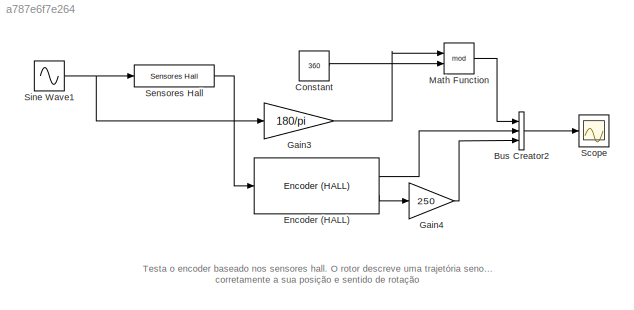
MODEL slx_a787e6f7e264
KIND model
BLOCK [BusCreator] Bus Creator2
  DisplayOption = bar
  Inputs = 3
  Ports = [3, 1]
BLOCK [Constant] Constant
  Value = 360
BLOCK [Reference] Encoder (HALL)  REF=Encoder/Encoder (HALL)
  Ports = [1, 2]
  SourceBlock = Encoder/Encoder (HALL)
  SourceType = Stateflow
BLOCK [Gain] Gain3
  Gain = 180/pi
  OutDataTypeStr = Inherit: Inherit via internal rule
  ParamDataTypeStr = Inherit: Inherit via internal rule
  SaturateOnIntegerOverflow = off
BLOCK [Gain] Gain4
  Gain = 250
  OutDataTypeStr = Inherit: Inherit via internal rule
  ParamDataTypeStr = Inherit: Inherit via internal rule
  SaturateOnIntegerOverflow = off
BLOCK [Math] Math Function
  Operator = mod
  Ports = [2, 1]
BLOCK [Scope] Scope
  DataFormat = StructureWithTime
  Floating = off
  LimitDataPoints = off
  NumInputPorts = 1
  Ports = [1]
  SampleTime = 0
  SaveName = ScopeData7
  ShowLegends = off
  ZoomMode = yonly
BLOCK [Reference] Sensores Hall  REF=BLDC/BLDC (block commutation)/Sensores Hall
  Ports = [1, 1]
  SourceBlock = BLDC/BLDC (block commutation)/Sensores Hall
  SourceType = SubSystem
BLOCK [Sin] Sine Wave1
  Amplitude = 2*pi
  Ports = [0, 1]
  SampleTime = 0
ANNOTATION (root): Testa o encoder baseado nos sensores hall. O rotor descreve uma trajetória senoidal, e o encoder acompanha corretamente a sua posição e sentido de rotação
LINE Bus Creator2:1 -> Scope:1
LINE Constant:1 -> Math Function:2
LINE Encoder (HALL):1 -> Bus Creator2:2
LINE Encoder (HALL):2 -> Gain4:1
LINE Gain3:1 -> Math Function:1
LINE Gain4:1 -> Bus Creator2:3
LINE Math Function:1 -> Bus Creator2:1
LINE Sensores Hall:1 -> Encoder (HALL):1
NET Sine Wave1:1 -> Gain3:1, Sensores Hall:1
note: NET lines group one-source signal fan-out (src -> all destinations, sorted); 1:1 wires keep LINE
